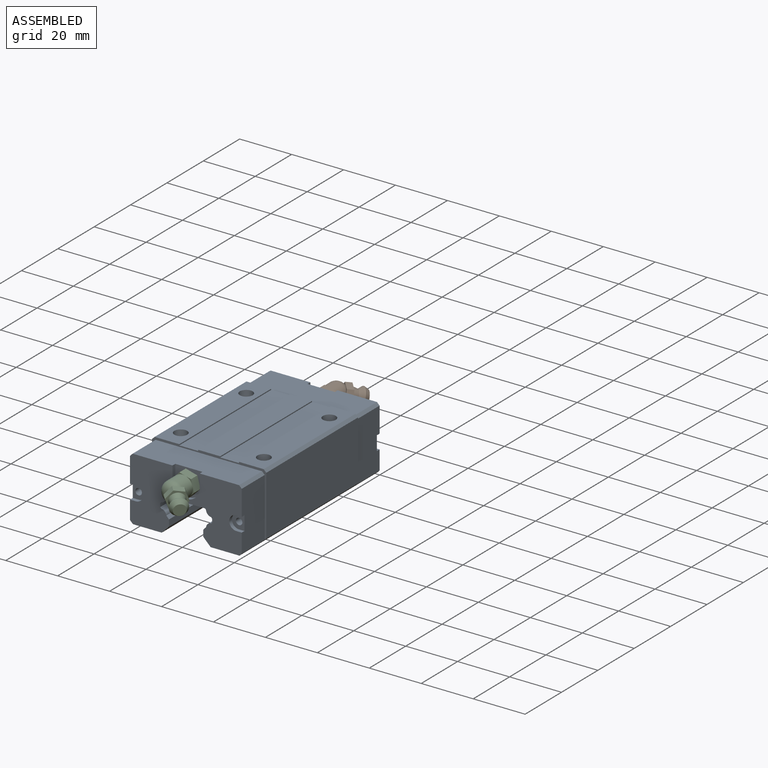
[diagram: assembled view]
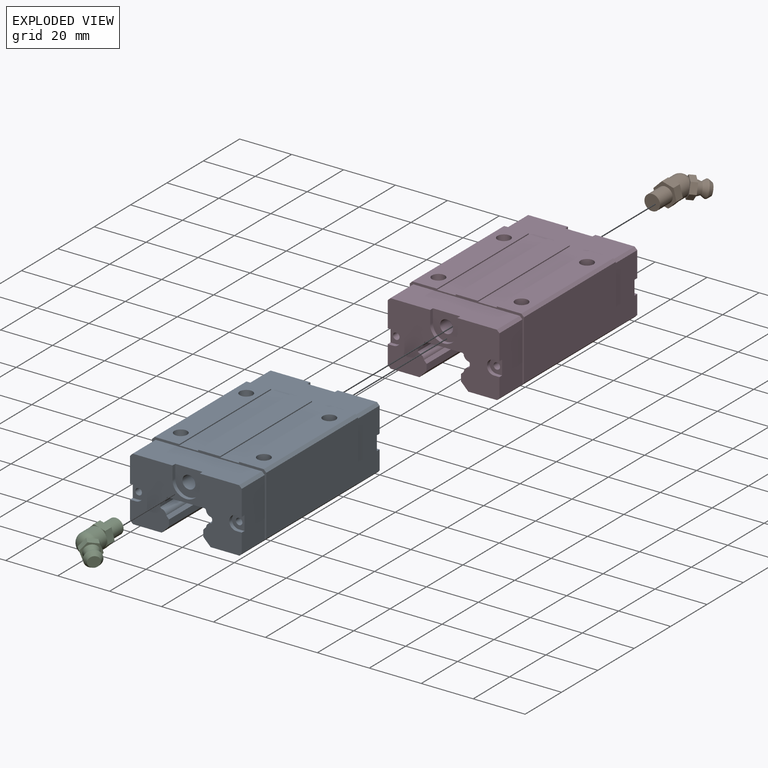
[diagram: exploded view]
GUIDED TOUR — FREECAD ASSEMBLY "HGH20CA"

This assembly has 4 components, labeled P0..P3 below (a component is one placed body or linked part; the same part can appear more than once), held together by 0 modeled joints plus 5 derived contact edges. A joint is a constraint between two components; its type names the relative motion it leaves free:
  CONTACT — a derived adjacency edge — the two components touch in the source model (clearance under 2% of the assembly's diagonal); it is measured from the geometry, not a modeled constraint.
Axis/direction vectors are unit vectors and 'through' points are millimeter coordinates, both in the assembly's world frame.

MATES
  1. CONTACT "contact_0_1": P0 <-> P1, contact direction (0.000, 1.000, 0.000) through (-1.39, 36.40, 26.47) mm (derived from contact, not a modeled constraint)
  2. CONTACT "contact_0_2": P0 <-> P2, contact direction (0.000, -1.000, 0.000) through (0.89, -36.40, 21.50) mm (derived from contact, not a modeled constraint)
  3. CONTACT "contact_0_3": P0 <-> P3, contact direction (0.000, 0.000, 1.000) through (-19.35, 37.90, 12.85) mm (derived from contact, not a modeled constraint)
  4. CONTACT "contact_1_3": P1 <-> P3, contact direction (0.000, -1.000, 0.000) through (-1.39, 36.40, 26.47) mm (derived from contact, not a modeled constraint)
  5. CONTACT "contact_2_3": P2 <-> P3, contact direction (0.000, 1.000, 0.000) through (0.89, -36.40, 21.50) mm (derived from contact, not a modeled constraint)

ASSEMBLY ORDER
  1. P0 — the base component [order heuristic]
  2. P3 — core [order heuristic]
  3. P1 [order verified]
  4. P2 — core [order heuristic]
Order-tag legend:
  [order verified] — this step's position reverses a verified removal order: the component was checked to insert without passing through the ones already placed.
  [order heuristic] — the first 3 components form the assembly's core: parts whose collision-free extraction could not be verified, listed in mate-graph order.

Of the 4 components, 4 carry a construction recipe — the FreeCAD feature program (sketches with constraints, then the solid features that consume them) that regenerates the part from scratch, quoted from this document or from the linked companion document it references; the rest are supplied as boundary geometry only. The tour below walks the components in assembly order: each is shown spotlighted twice — in the assembled view, then in the exploded view, where a leader line traces a displaced component back to its assembled socket (components that stay in place when exploded have no leader line; saturated green if recipe-attached, orange if geometry-only; every other component desaturated gray) — followed by its recipe or geometry summary and the mates that hold it.
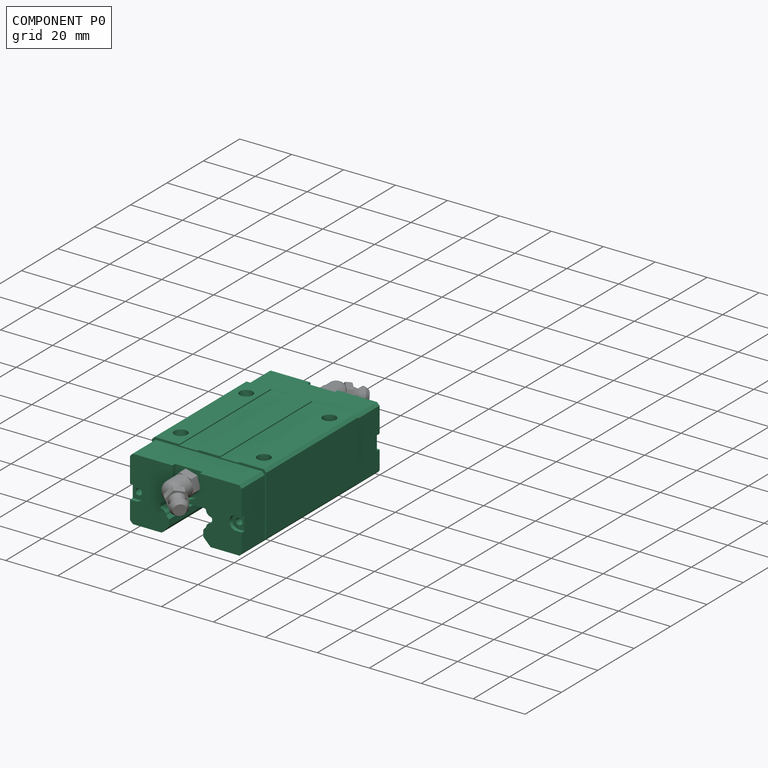
[diagram: component P0 — assembled]
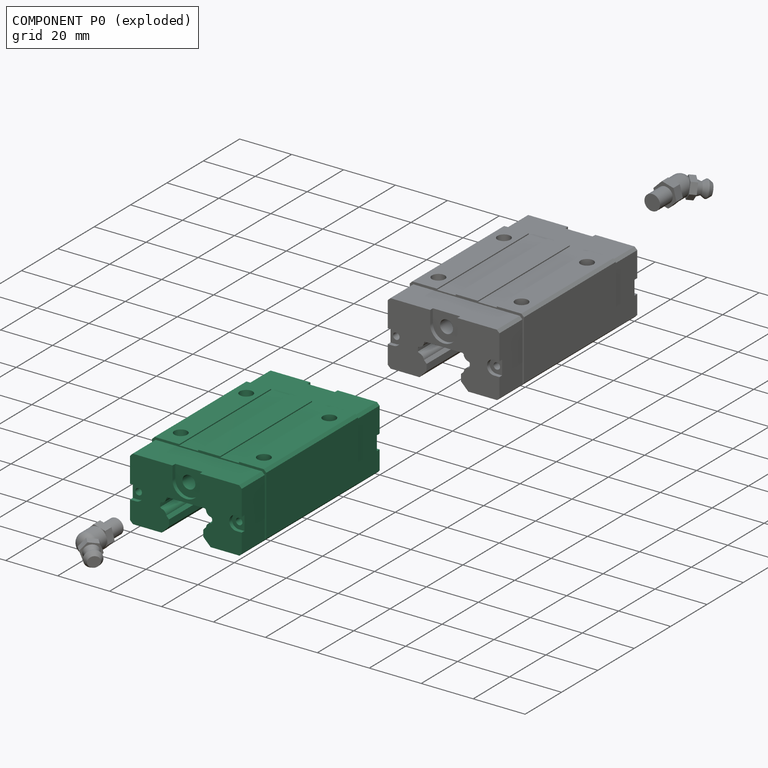
[diagram: component P0 — exploded]
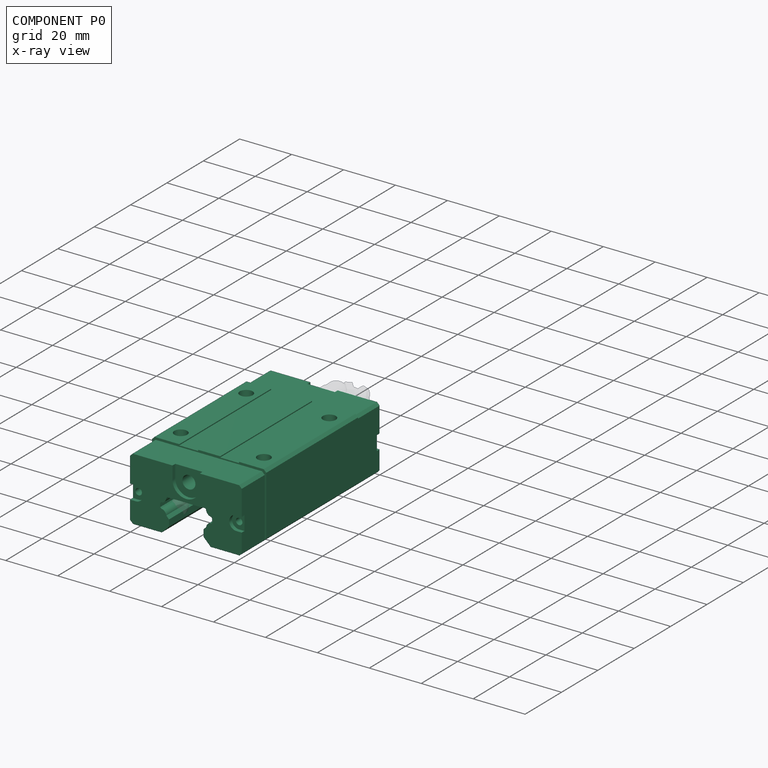
[diagram: component P0 — x-ray view]
COMPONENT P0 — recipe-attached ("Link001(HGH20CA)", modeled in this document).
Held by: resting contact with P1 (derived edge); resting contact with P2 (derived edge); resting contact with P3 (derived edge).
Construction recipe (the document's own serialized feature program — sketch geometry with constraints, then the solid features built on it; lengths are millimeters unless a unit is written):

FEATURE [Sketcher::SketchObject] Sketch
  FullyConstrained = true
  MapMode = 5
  Placement = pos=(0,0,0) rot=(1,0,0;1.5708rad)
  Support = -> [XZ_Plane]
  sketch-geometry (20):
    g0: LineSegment StartX=-21 StartY=30 StartZ=0 EndX=-11.5 EndY=30 EndZ=0
    g1: LineSegment StartX=22 StartY=29 StartZ=0 EndX=22 EndY=6.1 EndZ=0
    g2: LineSegment StartX=20.5 StartY=4.6 StartZ=0 EndX=-20.5 EndY=4.6 EndZ=0
    g3: LineSegment StartX=-21.6 StartY=5.7 StartZ=0 EndX=-21.6 EndY=22 EndZ=0
    g4: GeomPoint [constr] X=0 Y=4.6 Z=0
    g5: LineSegment StartX=-20.5 StartY=4.6 StartZ=0 EndX=-21.6 EndY=5.7 EndZ=0
    g6: LineSegment StartX=20.5 StartY=4.6 StartZ=0 EndX=22 EndY=6.1 EndZ=0
    g7: LineSegment StartX=-22 StartY=29 StartZ=0 EndX=-21 EndY=30 EndZ=0
    g8: LineSegment StartX=21 StartY=30 StartZ=0 EndX=22 EndY=29 EndZ=0
    g9: LineSegment StartX=-11.5 StartY=30 StartZ=0 EndX=-11.5 EndY=29.6 EndZ=0
    g10: LineSegment StartX=-11.5 StartY=29.6 StartZ=0 EndX=-4.25 EndY=29.6 EndZ=0
    g11: LineSegment StartX=-4.25 StartY=29.6 StartZ=0 EndX=-4.25 EndY=30 EndZ=0
    g12: LineSegment StartX=4.25 StartY=30 StartZ=0 EndX=4.25 EndY=29.6 EndZ=0
    g13: LineSegment StartX=4.25 StartY=29.6 StartZ=0 EndX=11.5 EndY=29.6 EndZ=0
    g14: LineSegment StartX=11.5 StartY=29.6 StartZ=0 EndX=11.5 EndY=30 EndZ=0
    g15: LineSegment StartX=11.5 StartY=30 StartZ=0 EndX=21 EndY=30 EndZ=0
    g16: LineSegment StartX=-4.25 StartY=30 StartZ=0 EndX=4.25 EndY=30 EndZ=0
    g17: GeomPoint [constr] X=0 Y=30 Z=0
    g18: LineSegment StartX=-21.6 StartY=22 StartZ=0 EndX=-22 EndY=22 EndZ=0
    g19: LineSegment StartX=-22 StartY=22 StartZ=0 EndX=-22 EndY=29 EndZ=0
  constraints (54):
    c: Horizontal(g0)
    c: Horizontal(g2)
    c: Vertical(g1)
    c: Vertical(g3)
    c: PointOnObject(g4,g-2)
    c: Vertical(g9)
    c: Coincident(g10,g9)
    c: Horizontal(g10)
    c: Coincident(g11,g10)
    c: Vertical(g11)
    c: Vertical(g12)
    c: Coincident(g13,g12)
    c: Horizontal(g13)
    c: Coincident(g14,g13)
    c: Vertical(g14)
    c: Coincident(g0,g7)
    c: Coincident(g15,g8)
    c: Coincident(g1,g8)
    c: Coincident(g16,g12)
    c: Coincident(g15,g14)
    c: Tangent(g0,g15)
    c: Coincident(g0,g9)
    c: Coincident(g16,g11)
    c: Tangent(g0,g16)
    c: Coincident(g1,g6)
    c: Coincident(g2,g6)
    c: Coincident(g2,g5)
    c: Coincident(g3,g5)
    c: Symmetric(g2,g2,g4)
    c: PointOnObject(g17,g-2)
    c: Symmetric(g12,g11,g17)
    c: Equal(g13,g10)
    c: Symmetric(g8,g0,g17)
    c: Horizontal(g12,g10)
    c: DistanceX(g16,g16) = 8.5
    c: DistanceX(g2,g2) = 41
    c: DistanceY(g14,g14) = 0.4
    c: DistanceX(g14,g1) = 10.5
    c: DistanceY(g1,g8) = 1
    c: DistanceY(g-1,g2) = 4.6
    c: DistanceY(g-1,g8) = 30
    c: DistanceY(g2,g1) = 1.5
    c: Horizontal(g18)
    c: Coincident(g19,g18)
    c: Vertical(g19)
    c: DistanceX(g8,g1) = 1
    c: Coincident(g3,g18)
    c: Coincident(g7,g19)
    c: Horizontal(g1,g7)
    c: DistanceX(g7,g1) = 44
    c: DistanceX(g7,g0) = 10.5
    c: DistanceY(g18,g0) = 8
    c: DistanceX(g18,g3) = 0.4
    c: Angle(g2,g5) = 2.35619
FEATURE [PartDesign::Pad] Pad
  ClaimChildren = false
  Direction = (1,1,1)
  Fit = 0
  FitJoin = 0
  InnerFit = 0
  InnerFitJoin = 0
  InnerTaperAngle = 0
  InnerTaperAngleRev = 0
  Length = 50.5
  Length2 = 100
  Linearize = true
  Midplane = true
  NewSolid = false
  Placement = pos=(0,0,0) rot=(1,0,0;1.5708rad)
  Profile = -> Sketch
  Refine = true
  Suppress = false
  Type = 0
FEATURE [Sketcher::SketchObject] Sketch001
  ExternalGeometry = -> [Pad]
  FullyConstrained = true
  MapMode = 5
  Placement = pos=(0,1.32e-14,30) rot=(0,0,1;3.14159rad)
  Support = -> [Pad]
  sketch-geometry (4):
    g0: Circle CenterX=-16 CenterY=18 CenterZ=0 NormalX=0 NormalY=0 NormalZ=1 AngleXU=0 Radius=2.5
    g1: Circle CenterX=-16 CenterY=-18 CenterZ=0 NormalX=0 NormalY=0 NormalZ=1 AngleXU=0 Radius=2.5
    g2: Circle CenterX=16 CenterY=18 CenterZ=0 NormalX=0 NormalY=0 NormalZ=1 AngleXU=0 Radius=2.5
    g3: Circle CenterX=16 CenterY=-18 CenterZ=0 NormalX=0 NormalY=0 NormalZ=1 AngleXU=0 Radius=2.5
  constraints (12):
    c: Horizontal(g3,g1)
    c: Vertical(g1,g0)
    c: Vertical(g2,g3)
    c: Horizontal(g0,g2)
    c: DistanceX(g0,g2) = 32
    c: DistanceY(g3,g2) = 36
    c: Equal(g0,g2)
    c: Equal(g2,g3)
    c: Equal(g3,g1)
    c: Symmetric(g0,g3,g-1)
    c: DistanceX(g2,g-3) = 5.6
    c: Diameter(g2) = 5
FEATURE [Sketcher::SketchObject] Sketch002
  ExternalGeometry = -> [Pad]
  FullyConstrained = true
  MapMode = 5
  Placement = pos=(0,0,0) rot=(1,0,0;1.5708rad)
  Support = -> [XZ_Plane]
  sketch-geometry (8):
    g0: LineSegment StartX=-20.6 StartY=29.1 StartZ=0 EndX=20.4 EndY=29.1 EndZ=0
    g1: LineSegment StartX=21.4 StartY=28.1 StartZ=0 EndX=21.4 EndY=5.5 EndZ=0
    g2: LineSegment StartX=20.5 StartY=4.6 StartZ=0 EndX=-20.5 EndY=4.6 EndZ=0
    g3: LineSegment StartX=-21.6 StartY=5.7 StartZ=0 EndX=-21.6 EndY=28.1 EndZ=0
    g4: LineSegment StartX=-21.6 StartY=5.7 StartZ=0 EndX=-20.5 EndY=4.6 EndZ=0
    g5: LineSegment StartX=-21.6 StartY=28.1 StartZ=0 EndX=-20.6 EndY=29.1 EndZ=0
    g6: LineSegment StartX=20.4 StartY=29.1 StartZ=0 EndX=21.4 EndY=28.1 EndZ=0
    g7: LineSegment StartX=20.5 StartY=4.6 StartZ=0 EndX=21.4 EndY=5.5 EndZ=0
  constraints (22):
    c: Horizontal(g0)
    c: Horizontal(g2)
    c: Vertical(g1)
    c: Vertical(g3)
    c: Coincident(g3,g4)
    c: Coincident(g2,g4)
    c: Coincident(g2,g-7)
    c: Coincident(g3,g-7)
    c: Coincident(g0,g5)
    c: Coincident(g3,g5)
    c: Coincident(g0,g6)
    c: Coincident(g1,g6)
    c: Horizontal(g1,g3)
    c: DistanceX(g3,g0) = 1
    c: DistanceY(g3,g0) = 1
    c: DistanceX(g0,g1) = 1
    c: DistanceY(g2,g0) = 24.5
    c: DistanceX(g3,g1) = 43
    c: Coincident(g7,g-5)
    c: PointOnObject(g7,g-5)
    c: Coincident(g1,g7)
    c: PointOnObject(g2,g7)
FEATURE [PartDesign::Pad] Pad001
  BaseFeature = -> Pad
  ClaimChildren = false
  Direction = (1,1,1)
  Fit = 0
  FitJoin = 0
  InnerFit = 0
  InnerFitJoin = 0
  InnerTaperAngle = 0
  InnerTaperAngleRev = 0
  Length = 75.8
  Length2 = 100
  Linearize = true
  Midplane = true
  NewSolid = false
  Placement = pos=(0,0,0) rot=(1,0,0;1.5708rad)
  Profile = -> Sketch002
  Refine = true
  Suppress = false
  Type = 0
FEATURE [Sketcher::SketchObject] Sketch003
  ExternalGeometry = -> [Pad001]
  FullyConstrained = true
  MapMode = 5
  Placement = pos=(0,-37.9,8.3e-15) rot=(1,0,0;1.5708rad)
  Support = -> [Pad001]
  sketch-geometry (14):
    g0: ArcOfCircle CenterX=0 CenterY=24.1 CenterZ=0 NormalX=0 NormalY=0 NormalZ=1 AngleXU=0 Radius=5.25 StartAngle=3.14159 EndAngle=6.28319
    g1: ArcOfCircle CenterX=-19.35 CenterY=15.6 CenterZ=0 NormalX=0 NormalY=0 NormalZ=1 AngleXU=0 Radius=2.75 StartAngle=4.71239 EndAngle=7.85398
    g2: ArcOfCircle CenterX=19.35 CenterY=15.6 CenterZ=0 NormalX=0 NormalY=0 NormalZ=1 AngleXU=0 Radius=2.75 StartAngle=1.5708 EndAngle=4.71239
    g3: LineSegment StartX=-5.25 StartY=24.1 StartZ=0 EndX=-5.25 EndY=29.1 EndZ=0
    g4: LineSegment StartX=5.25 StartY=24.1 StartZ=0 EndX=5.25 EndY=29.1 EndZ=0
    g5: LineSegment StartX=-5.25 StartY=29.1 StartZ=0 EndX=5.25 EndY=29.1 EndZ=0
    g6: LineSegment StartX=-19.35 StartY=18.35 StartZ=0 EndX=-21.6 EndY=18.35 EndZ=0
    g7: LineSegment StartX=-19.35 StartY=12.85 StartZ=0 EndX=-21.6 EndY=12.85 EndZ=0
    g8: LineSegment [constr] StartX=-19.35 StartY=15.6 StartZ=0 EndX=0 EndY=15.6 EndZ=0
    g9: LineSegment [constr] StartX=0 StartY=15.6 StartZ=0 EndX=19.35 EndY=15.6 EndZ=0
    g10: LineSegment StartX=19.35 StartY=18.35 StartZ=0 EndX=21.4 EndY=18.35 EndZ=0
    g11: LineSegment StartX=19.35 StartY=12.85 StartZ=0 EndX=21.4 EndY=12.85 EndZ=0
    g12: LineSegment StartX=-21.6 StartY=18.35 StartZ=0 EndX=-21.6 EndY=12.85 EndZ=0
    g13: LineSegment StartX=21.4 StartY=18.35 StartZ=0 EndX=21.4 EndY=12.85 EndZ=0
  constraints (38):
    c: PointOnObject(g0,g-2)
    c: Horizontal(g1,g2)
    c: Equal(g1,g2)
    c: Diameter(g0) = 10.5
    c: DistanceY(g0,g-3) = 5
    c: PointOnObject(g3,g-3)
    c: Vertical(g3)
    c: PointOnObject(g4,g-3)
    c: Vertical(g4)
    c: Tangent(g0,g3) = 1.5708
    c: Tangent(g0,g4) = -1.5708
    c: Coincident(g5,g3)
    c: Coincident(g5,g4)
    c: PointOnObject(g6,g-4)
    c: Horizontal(g6)
    c: PointOnObject(g7,g-4)
    c: Horizontal(g7)
    c: Diameter(g1) = 5.5
    c: Coincident(g8,g1)
    c: Horizontal(g8)
    c: Coincident(g9,g8)
    c: Coincident(g9,g2)
    c: Equal(g9,g8)
    c: PointOnObject(g10,g-5)
    c: Horizontal(g10)
    c: PointOnObject(g11,g-5)
    c: Horizontal(g11)
    c: DistanceY(g2,g-3) = 13.5
    c: DistanceX(g-4,g1) = 2.25
    c: PointOnObject(g8,g-2)
    c: Tangent(g1,g7) = 1.5708
    c: Tangent(g1,g6) = -1.5708
    c: Tangent(g2,g10) = 1.5708
    c: Tangent(g2,g11) = -1.5708
    c: Coincident(g12,g6)
    c: Coincident(g12,g7)
    c: Coincident(g13,g10)
    c: Coincident(g13,g11)
FEATURE [PartDesign::Pocket] Pocket
  BaseFeature = -> Pad001
  ClaimChildren = false
  Fit = 0
  FitJoin = 0
  InnerFit = 0
  InnerFitJoin = 0
  InnerTaperAngle = 0
  InnerTaperAngleRev = 0
  Length = 1.5
  Length2 = 100
  Linearize = true
  NewSolid = false
  Placement = pos=(0,0,0) rot=(1,0,0;1.5708rad)
  Profile = -> Sketch003
  Refine = true
  Suppress = false
  Type = 0
FEATURE [Sketcher::SketchObject] Sketch004
  ExternalGeometry = -> [Pocket]
  FullyConstrained = true
  MapMode = 5
  Placement = pos=(0,-36.4,2.95e-14) rot=(1,0,0;1.5708rad)
  Support = -> [Pocket]
  sketch-geometry (3):
    g0: Circle CenterX=-19.35 CenterY=15.6 CenterZ=0 NormalX=0 NormalY=0 NormalZ=1 AngleXU=0 Radius=1.25
    g1: Circle CenterX=19.35 CenterY=15.6 CenterZ=0 NormalX=0 NormalY=0 NormalZ=1 AngleXU=0 Radius=1.25
    g2: Circle CenterX=0 CenterY=24.1 CenterZ=0 NormalX=0 NormalY=0 NormalZ=1 AngleXU=0 Radius=2.5
  constraints (6):
    c: Coincident(g0,g-3)
    c: Coincident(g1,g-5)
    c: Coincident(g2,g-4)
    c: Diameter(g2) = 5
    c: Diameter(g1) = 2.5
    c: Equal(g1,g0)
FEATURE [PartDesign::Pocket] Pocket001
  BaseFeature = -> Pocket
  ClaimChildren = false
  Fit = 0
  FitJoin = 0
  InnerFit = 0
  InnerFitJoin = 0
  InnerTaperAngle = 0
  InnerTaperAngleRev = 0
  Length = 8
  Length2 = 100
  Linearize = true
  NewSolid = false
  Placement = pos=(0,0,0) rot=(1,0,0;1.5708rad)
  Profile = -> Sketch004
  Refine = true
  Suppress = false
  Type = 0
FEATURE [PartDesign::Mirrored] Mirrored
  BaseFeature = -> Pocket001
  CopyShape = false
  MirrorPlane = -> XZ_Plane
  NewSolid = false
  OriginalSubs = -> [Pocket001,Pocket]
  Originals = -> [Pocket001,Pocket]
  ParallelTransform = true
  Placement = pos=(0,0,0) rot=(1,0,0;1.5708rad)
  Refine = true
  SubTransform = true
  Suppress = false
  _Version = 1
FEATURE [Sketcher::SketchObject] Sketch010
  FullyConstrained = true
  MapMode = 5
  Placement = pos=(0,0,0) rot=(1,0,0;1.5708rad)
  Support = -> [XZ_Plane]
  sketch-geometry (29):
    g0: LineSegment StartX=-9 StartY=0 StartZ=0 EndX=-10 EndY=1 EndZ=0
    g1: LineSegment StartX=-10 StartY=1 StartZ=0 EndX=-10 EndY=4 EndZ=0
    g2: LineSegment StartX=-10 StartY=4 StartZ=0 EndX=-6.6 EndY=7.45 EndZ=0
    g3: LineSegment StartX=-6.6 StartY=7.45 StartZ=0 EndX=-6.6 EndY=9.95 EndZ=0
    g4: LineSegment StartX=-6.6 StartY=9.95 StartZ=0 EndX=-7.65996 EndY=11.05 EndZ=0
    g5: ArcOfCircle CenterX=-9.8 CenterY=10.8 CenterZ=0 NormalX=0 NormalY=0 NormalZ=1 AngleXU=0 Radius=2.15459 StartAngle=0.116293 EndAngle=1.47784
    g6: LineSegment StartX=-9.6 StartY=12.9453 StartZ=0 EndX=-10 EndY=13.3453 EndZ=0
    g7: LineSegment StartX=-10 StartY=13.3453 StartZ=0 EndX=-10 EndY=14.6953 EndZ=0
    g8: LineSegment StartX=-10 StartY=14.6953 StartZ=0 EndX=-9.6 EndY=15.0953 EndZ=0
    g9: ArcOfCircle CenterX=-9.8 CenterY=17.2406 CenterZ=0 NormalX=0 NormalY=0 NormalZ=1 AngleXU=0 Radius=2.15459 StartAngle=4.80535 EndAngle=6.21789
    g10: LineSegment StartX=-7.65 StartY=17.1 StartZ=0 EndX=-7.25 EndY=17.5 EndZ=0
    g11: LineSegment StartX=-7.25 StartY=17.5 StartZ=0 EndX=0 EndY=17.5 EndZ=0
    g12: LineSegment StartX=0 StartY=17.5 StartZ=0 EndX=7.25 EndY=17.5 EndZ=0
    g13: LineSegment StartX=7.25 StartY=17.5 StartZ=0 EndX=7.65 EndY=17.1 EndZ=0
    g14: ArcOfCircle CenterX=9.8 CenterY=17.2406 CenterZ=0 NormalX=0 NormalY=0 NormalZ=1 AngleXU=0 Radius=2.15459 StartAngle=3.20688 EndAngle=4.61943
    g15: LineSegment StartX=9.6 StartY=15.0953 StartZ=0 EndX=10 EndY=14.6953 EndZ=0
    g16: LineSegment StartX=10 StartY=14.6953 StartZ=0 EndX=10 EndY=13.3453 EndZ=0
    g17: LineSegment StartX=10 StartY=13.3453 StartZ=0 EndX=9.6 EndY=12.9453 EndZ=0
    g18: ArcOfCircle CenterX=9.8 CenterY=10.8 CenterZ=0 NormalX=0 NormalY=0 NormalZ=1 AngleXU=0 Radius=2.15459 StartAngle=1.66376 EndAngle=3.0253
    g19: LineSegment StartX=7.65996 StartY=11.05 StartZ=0 EndX=6.6 EndY=9.95 EndZ=0
    g20: LineSegment StartX=6.6 StartY=9.95 StartZ=0 EndX=6.6 EndY=7.45 EndZ=0
    g21: LineSegment StartX=6.6 StartY=7.45 StartZ=0 EndX=10 EndY=4 EndZ=0
    g22: LineSegment StartX=10 StartY=4 StartZ=0 EndX=10 EndY=1 EndZ=0
    g23: LineSegment StartX=10 StartY=1 StartZ=0 EndX=9 EndY=0 EndZ=0
    g24: LineSegment StartX=-4 StartY=0 StartZ=0 EndX=-4 EndY=0.4 EndZ=0
    g25: LineSegment StartX=-4 StartY=0.4 StartZ=0 EndX=4 EndY=0.4 EndZ=0
    g26: LineSegment StartX=4 StartY=0.4 StartZ=0 EndX=4 EndY=0 EndZ=0
    g27: LineSegment StartX=-9 StartY=0 StartZ=0 EndX=-4 EndY=0 EndZ=0
    g28: LineSegment StartX=4 StartY=0 StartZ=0 EndX=9 EndY=0 EndZ=0
  constraints (89):
    c: Coincident(g0,g1)
    c: Vertical(g1)
    c: Coincident(g1,g2)
    c: Coincident(g2,g3)
    c: Vertical(g3)
    c: Coincident(g3,g4)
    c: Coincident(g5,g4)
    c: Coincident(g6,g5)
    c: Coincident(g6,g7)
    c: Vertical(g7)
    c: Coincident(g7,g8)
    c: Coincident(g9,g8)
    c: Coincident(g9,g10)
    c: Coincident(g10,g11)
    c: PointOnObject(g11,g-2)
    c: Horizontal(g11)
    c: Coincident(g11,g12)
    c: Horizontal(g12)
    c: Coincident(g12,g13)
    c: Coincident(g14,g13)
    c: Coincident(g14,g15)
    c: Coincident(g15,g16)
    c: Coincident(g16,g17)
    c: Coincident(g18,g17)
    c: Coincident(g18,g19)
    c: Coincident(g19,g20)
    c: Vertical(g20)
    c: Coincident(g20,g21)
    c: Coincident(g21,g22)
    c: Vertical(g22)
    c: Coincident(g22,g23)
    c: PointOnObject(g23,g-1)
    c: Equal(g0,g23)
    c: Equal(g22,g1)
    c: Equal(g2,g21)
    c: Equal(g20,g3)
    c: Equal(g4,g19)
    c: Equal(g5,g18)
    c: Equal(g18,g14)
    c: Equal(g14,g9)
    c: Equal(g15,g17)
    c: Vertical(g16)
    c: Equal(g16,g7)
    c: Equal(g10,g13)
    c: Equal(g12,g11)
    c: DistanceX(g10,g12) = 14.5
    c: Horizontal(g22,g0)
    c: DistanceX(g0,g22) = 20
    c: Horizontal(g2,g20)
    c: DistanceX(g0,g23) = 18
    c: DistanceY(g23,g22) = 1
    c: DistanceY(g22,g22) = 3
    c: DistanceX(g2,g20) = 13.2
    c: DistanceY(g21,g20) = 3.45
    c: DistanceY(g20,g20) = 2.5
    c: Horizontal(g18,g5)
    c: Horizontal(g18,g4)
    c: Horizontal(g9,g13)
    c: Horizontal(g9,g14)
    c: Vertical(g9,g5)
    c: DistanceX(g9,g13) = 15.3
    c: DistanceY(g13,g12) = 0.4
    c: Vertical(g15,g21)
    c: Vertical(g7,g1)
    c: Equal(g13,g15)
    c: Equal(g17,g6)
    c: Equal(g6,g8)
    c: DistanceY(g19,g18) = 1.1
    c: DistanceY(g23,g18) = 10.8
    c: DistanceX(g5,g17) = 19.2
    c: DistanceY(g23,g12) = 17.5
    c: DistanceY(g17,g16) = 0.4
    c: DistanceY(g15,g14) = 0.4
    c: DistanceY(g7,g7) = 1.35
    c: DistanceX(g-1,g18) = 9.8
    c: Coincident(g24,g25)
    c: Horizontal(g25)
    c: Coincident(g25,g26)
    c: Vertical(g26)
    c: Vertical(g24)
    c: Symmetric(g26,g24,g-1)
    c: Coincident(g27,g0)
    c: Coincident(g27,g24)
    c: Horizontal(g27)
    c: Coincident(g28,g26)
    c: Coincident(g28,g23)
    c: DistanceX(g25,g25) = 8
    c: DistanceY(g26,g26) = 0.4
    c: Symmetric(g23,g0,g-1)
FEATURE [PartDesign::Pocket] Pocket002
  BaseFeature = -> Mirrored
  ClaimChildren = false
  Fit = 0
  FitJoin = 0
  InnerFit = 0
  InnerFitJoin = 0
  InnerTaperAngle = 0
  InnerTaperAngleRev = 0
  Length = 5
  Length2 = 100
  Linearize = true
  Midplane = true
  NewSolid = false
  Placement = pos=(0,0,0) rot=(1,0,0;1.5708rad)
  Profile = -> Sketch010
  Refine = true
  Suppress = false
  Type = 1
FEATURE [PartDesign::Pocket] Pocket003
  BaseFeature = -> Pocket002
  ClaimChildren = false
  Fit = 0
  FitJoin = 0
  InnerFit = 0
  InnerFitJoin = 0
  InnerTaperAngle = 0
  InnerTaperAngleRev = 0
  Length = 9
  Length2 = 100
  Linearize = true
  NewSolid = false
  Placement = pos=(0,0,0) rot=(1,0,0;1.5708rad)
  Profile = -> Sketch001
  Refine = true
  Suppress = false
  Type = 0
FEATURE [PartDesign::Body] Body  label="HGH20CA"
  AutoGroupSolids = false
  ExportMode = 0
  Group = -> [Sketch,Pad,Sketch001,Sketch002,Pad001,Sketch003,Pocket,Sketch004,Pocket001,Mirrored,Sketch010,Pocket002,Pocket003]
  Origin = -> Origin
  Tip = -> Pocket003
  _ExportChildren = -> [Pad,Pad001,Pocket,Pocket001,Mirrored,Pocket002,Pocket003]
  _GroupVersion = 1
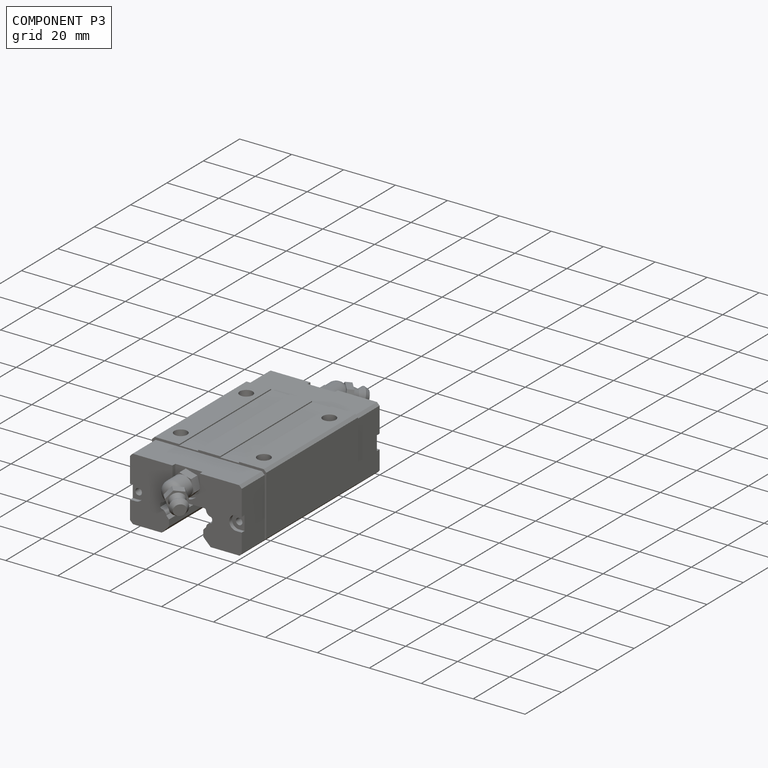
[diagram: component P3 — assembled]
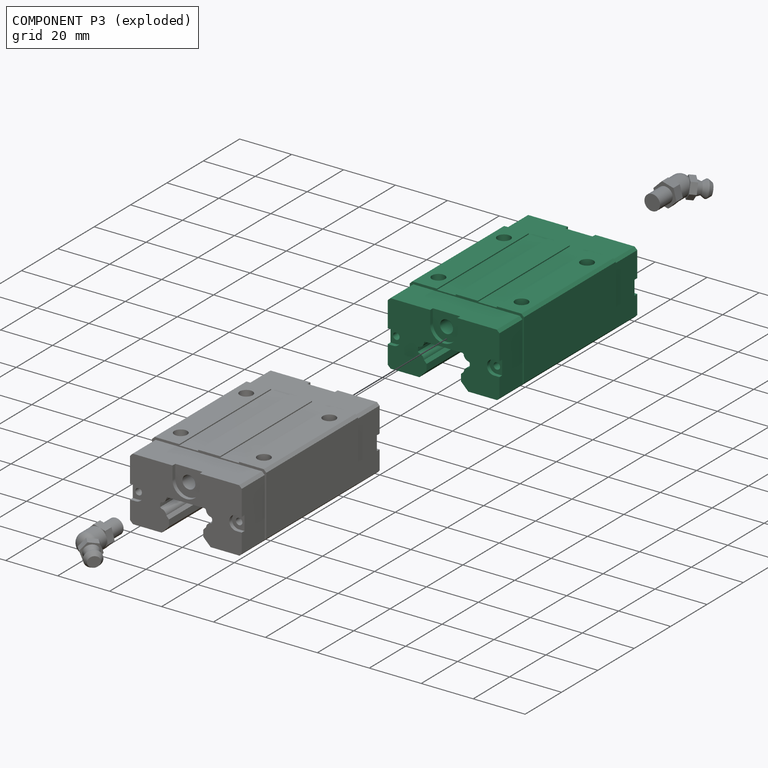
[diagram: component P3 — exploded]
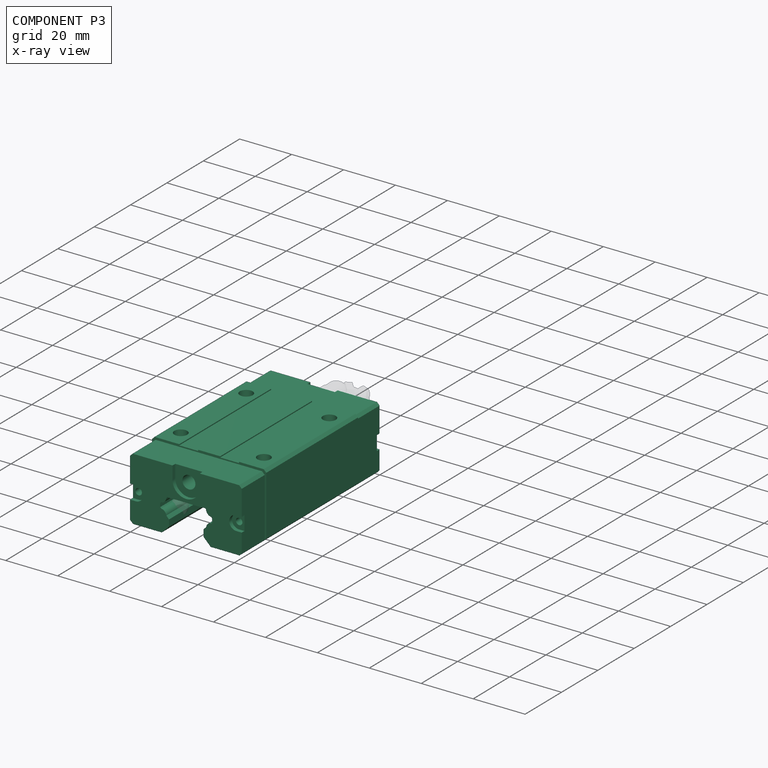
[diagram: component P3 — x-ray view]
COMPONENT P3 — same part as P0; its construction recipe is shown at P0.
Held by: resting contact with P0 (derived edge); resting contact with P1 (derived edge); resting contact with P2 (derived edge).
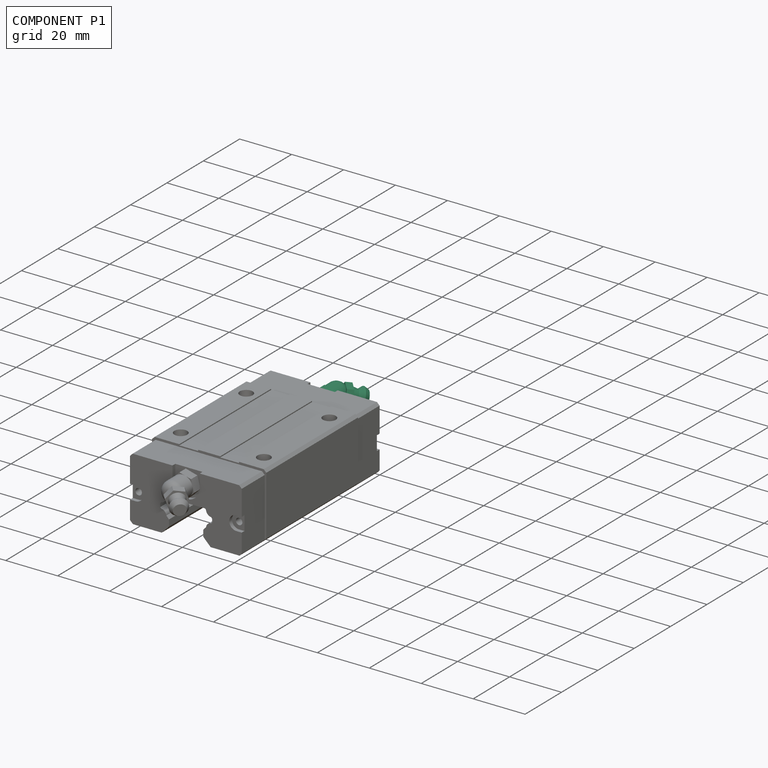
[diagram: component P1 — assembled]
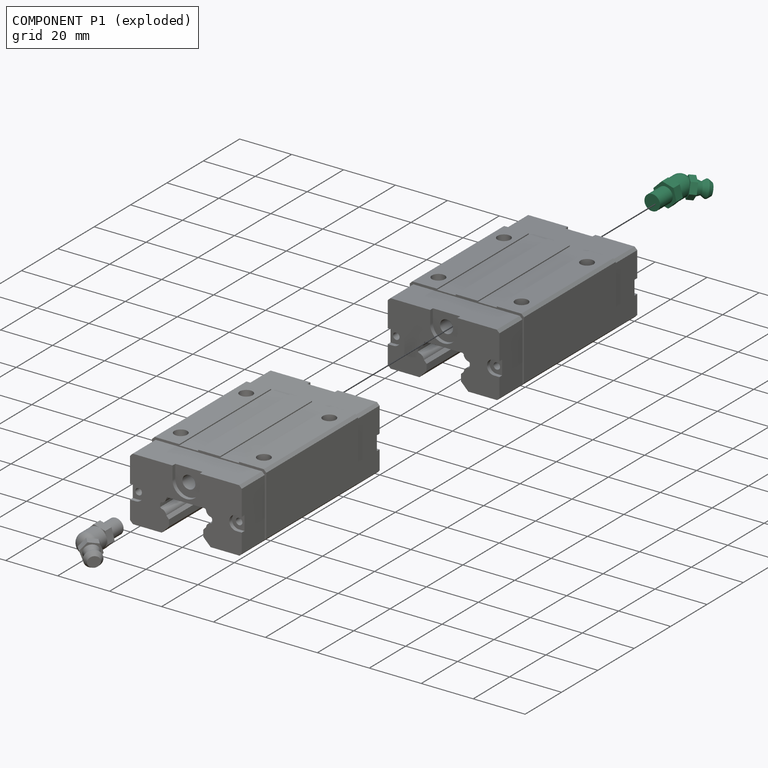
[diagram: component P1 — exploded]
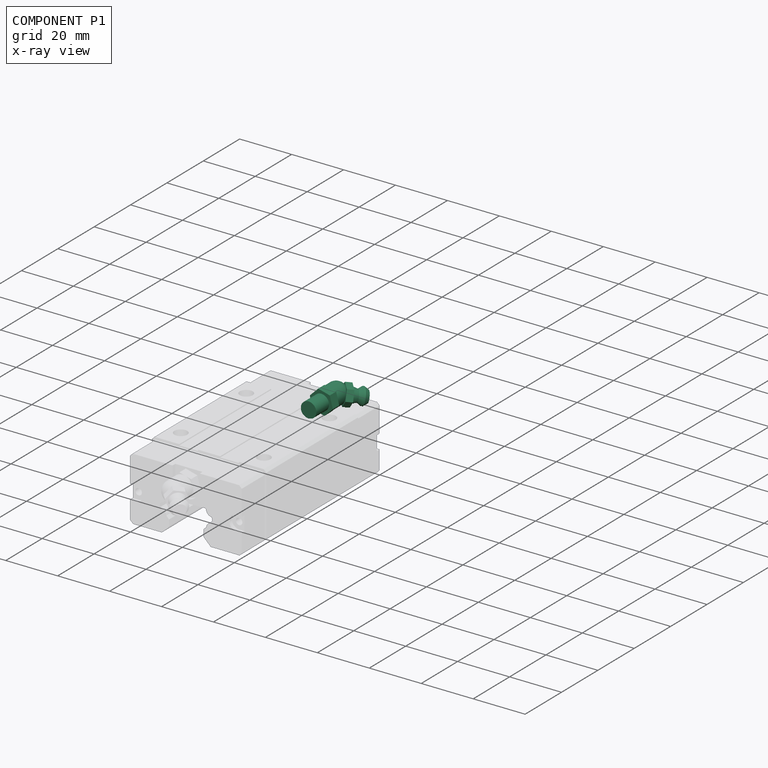
[diagram: component P1 — x-ray view]
COMPONENT P1 — recipe-attached ("Link002(Greaser)", modeled in this document).
Held by: resting contact with P0 (derived edge); resting contact with P3 (derived edge).
Construction recipe (the document's own serialized feature program — sketch geometry with constraints, then the solid features built on it; lengths are millimeters unless a unit is written):

FEATURE [Sketcher::SketchObject] Sketch005
  FullyConstrained = true
  MapMode = 5
  Placement = pos=(0,0,0) rot=(1,0,0;1.5708rad)
  Support = -> [XZ_Plane001]
  sketch-geometry (1):
    g0: Circle CenterX=0 CenterY=0 CenterZ=0 NormalX=0 NormalY=0 NormalZ=1 AngleXU=0 Radius=3
  constraints (2):
    c: Coincident(g0,g-1)
    c: Radius(g0) = 3
FEATURE [PartDesign::Pad] Pad002
  ClaimChildren = false
  Direction = (1,1,1)
  Fit = 0
  FitJoin = 0
  InnerFit = 0
  InnerFitJoin = 0
  InnerTaperAngle = 0
  InnerTaperAngleRev = 0
  Length = 7
  Length2 = 100
  Linearize = true
  NewSolid = false
  Placement = pos=(0,0,0) rot=(1,0,0;1.5708rad)
  Profile = -> Sketch005
  Refine = true
  Suppress = false
  Type = 0
FEATURE [Sketcher::SketchObject] Sketch006
  FullyConstrained = true
  MapMode = 5
  Placement = pos=(0,0,0) rot=(-1,0,0;1.5708rad)
  Support = -> [Pad002]
  sketch-geometry (7):
    g0: LineSegment StartX=4 StartY=-2.3094 StartZ=0 EndX=4 EndY=2.3094 EndZ=0
    g1: LineSegment StartX=4 StartY=2.3094 StartZ=0 EndX=-4e-16 EndY=4.6188 EndZ=0
    g2: LineSegment StartX=-4e-16 StartY=4.6188 StartZ=0 EndX=-4 EndY=2.3094 EndZ=0
    g3: LineSegment StartX=-4 StartY=2.3094 StartZ=0 EndX=-4 EndY=-2.3094 EndZ=0
    g4: LineSegment StartX=-4 StartY=-2.3094 StartZ=0 EndX=4e-16 EndY=-4.6188 EndZ=0
    g5: LineSegment StartX=4e-16 StartY=-4.6188 StartZ=0 EndX=4 EndY=-2.3094 EndZ=0
    g6: Circle [constr] CenterX=0 CenterY=0 CenterZ=0 NormalX=0 NormalY=0 NormalZ=1 AngleXU=0 Radius=4.6188
  constraints (16):
    c: Coincident(g0,g1)
    c: Coincident(g1,g2)
    c: Coincident(g2,g3)
    c: Coincident(g3,g4)
    c: Coincident(g4,g5)
    c: Coincident(g5,g0)
    c: Equal(g0, g1-g5) x5
    c: PointOnObject(g0,g6)
    c: PointOnObject(g1,g6)
    c: PointOnObject(g2,g6)
    c: PointOnObject(g3,g6)
    c: PointOnObject(g4,g6)
    c: PointOnObject(g5,g6)
    c: Coincident(g6,g-1)
    c: Vertical(g0)
    c: DistanceX(g2,g0) = 8
FEATURE [PartDesign::Pad] Pad003
  BaseFeature = -> Pad002
  ClaimChildren = false
  Direction = (1,1,1)
  Fit = 0
  FitJoin = 0
  InnerFit = 0
  InnerFitJoin = 0
  InnerTaperAngle = 0
  InnerTaperAngleRev = 0
  Length = 3.5
  Length2 = 100
  Linearize = true
  NewSolid = false
  Placement = pos=(0,0,0) rot=(1,0,0;1.5708rad)
  Profile = -> Sketch006
  Refine = true
  Suppress = false
  Type = 0
FEATURE [Sketcher::SketchObject] Sketch007
  FullyConstrained = true
  MapMode = 5
  Placement = pos=(0,3.5,8e-16) rot=(-1,0,0;1.5708rad)
  Support = -> [Pad003]
  sketch-geometry (1):
    g0: Circle CenterX=0 CenterY=0 CenterZ=0 NormalX=0 NormalY=0 NormalZ=1 AngleXU=0 Radius=4
  constraints (2):
    c: Coincident(g0,g-1)
    c: Radius(g0) = 4
FEATURE [PartDesign::Pad] Pad004
  BaseFeature = -> Pad003
  ClaimChildren = false
  Direction = (1,1,1)
  Fit = 0
  FitJoin = 0
  InnerFit = 0
  InnerFitJoin = 0
  InnerTaperAngle = 0
  InnerTaperAngleRev = 0
  Length = 8
  Length2 = 100
  Linearize = true
  NewSolid = false
  Placement = pos=(0,0,0) rot=(1,0,0;1.5708rad)
  Profile = -> Sketch007
  Refine = true
  Suppress = false
  Type = 0
FEATURE [PartDesign::Fillet] Fillet
  Base = -> Pad004 [Edge35]
  BaseFeature = -> Pad004
  NewSolid = false
  Placement = pos=(0,0,0) rot=(1,0,0;1.5708rad)
  Radius = 3
  Refine = true
  SupportTransform = false
  Suppress = false
FEATURE [PartDesign::Plane] DatumPlane
  AttachmentOffset = pos=(0,0,0) rot=(1,0,0;0.785398rad)
  Length = 50
  MapMode = 5
  MinimumLength = 10
  MinimumWidth = 10
  Placement = pos=(0,11.5,3e-15) rot=(-1,0,0;0.785398rad)
  ResizeMode = 0
  Support = -> [Fillet]
  Width = 70.7107
FEATURE [Sketcher::SketchObject] Sketch008
  FullyConstrained = true
  MapMode = 5
  Placement = pos=(0,11.5,3.6e-15) rot=(-1,0,0;0.785398rad)
  Support = -> [DatumPlane]
  sketch-geometry (7):
    g0: LineSegment StartX=3.5 StartY=-4.62073 StartZ=0 EndX=3.5 EndY=-0.579274 EndZ=0
    g1: LineSegment StartX=3.5 StartY=-0.579274 StartZ=0 EndX=8.273e-13 EndY=1.44145 EndZ=0
    g2: LineSegment StartX=8.273e-13 StartY=1.44145 StartZ=0 EndX=-3.5 EndY=-0.579274 EndZ=0
    g3: LineSegment StartX=-3.5 StartY=-0.579274 StartZ=0 EndX=-3.5 EndY=-4.62073 EndZ=0
    g4: LineSegment StartX=-3.5 StartY=-4.62073 StartZ=0 EndX=-8.273e-13 EndY=-6.64145 EndZ=0
    g5: LineSegment StartX=-8.273e-13 StartY=-6.64145 StartZ=0 EndX=3.5 EndY=-4.62073 EndZ=0
    g6: Circle [constr] CenterX=0 CenterY=-2.6 CenterZ=0 NormalX=0 NormalY=0 NormalZ=1 AngleXU=0 Radius=4.04145
  constraints (17):
    c: Coincident(g0,g1)
    c: Coincident(g1,g2)
    c: Coincident(g2,g3)
    c: Coincident(g3,g4)
    c: Coincident(g4,g5)
    c: Coincident(g5,g0)
    c: Equal(g0, g1-g5) x5
    c: PointOnObject(g0,g6)
    c: PointOnObject(g1,g6)
    c: PointOnObject(g2,g6)
    c: PointOnObject(g3,g6)
    c: PointOnObject(g4,g6)
    c: PointOnObject(g5,g6)
    c: PointOnObject(g6,g-2)
    c: Vertical(g0)
    c: DistanceX(g2,g0) = 7
    c: DistanceY(g6,g-1) = 2.6
FEATURE [PartDesign::Pad] Pad005
  BaseFeature = -> Fillet
  ClaimChildren = false
  Direction = (1,1,1)
  Fit = 0
  FitJoin = 0
  InnerFit = 0
  InnerFitJoin = 0
  InnerTaperAngle = 0
  InnerTaperAngleRev = 0
  Length = 2.5
  Length2 = 100
  Linearize = true
  NewSolid = false
  Placement = pos=(0,0,0) rot=(1,0,0;1.5708rad)
  Profile = -> Sketch008
  Refine = true
  Suppress = false
  Type = 0
FEATURE [PartDesign::Plane] DatumPlane001
  AttachmentOffset = pos=(0,0,0) rot=(0,1,0;1.5708rad)
  Length = 70.7107
  MapMode = 5
  MinimumLength = 10
  MinimumWidth = 10
  Placement = pos=(2e-16,7.51777,7.51777) rot=(-0.357407,0.862856,-0.357407;1.71777rad)
  ResizeMode = 0
  Support = -> [Pad005]
  Width = 70.7107
FEATURE [Sketcher::SketchObject] Sketch009
  ExternalGeometry = -> [Pad005]
  FullyConstrained = true
  MapMode = 5
  Placement = pos=(2e-16,7.51777,7.51777) rot=(-0.357407,0.862856,-0.357407;1.71777rad)
  Support = -> [DatumPlane001]
  sketch-geometry (7):
    g0: LineSegment StartX=0 StartY=8.43173 StartZ=0 EndX=-2 EndY=7.78173 EndZ=0
    g1: LineSegment StartX=-4 StartY=8.78173 StartZ=0 EndX=-5.5 EndY=7.78173 EndZ=0
    g2: LineSegment StartX=-5.5 StartY=7.78173 StartZ=0 EndX=-5.5 EndY=5.53173 EndZ=0
    g3: LineSegment StartX=-5.5 StartY=5.53173 StartZ=0 EndX=1.8e-15 EndY=5.53173 EndZ=0
    g4: LineSegment StartX=1.8e-15 StartY=5.53173 StartZ=0 EndX=0 EndY=8.43173 EndZ=0
    g5: LineSegment StartX=-4 StartY=8.78173 StartZ=0 EndX=-3.5 EndY=8.78173 EndZ=0
    g6: LineSegment StartX=-3.5 StartY=8.78173 StartZ=0 EndX=-2 EndY=7.78173 EndZ=0
  constraints (20):
    c: PointOnObject(g0,g-2)
    c: Vertical(g2)
    c: Coincident(g3,g2)
    c: Horizontal(g3)
    c: Coincident(g4,g3)
    c: Coincident(g4,g0)
    c: Symmetric(g-3,g-4,g3)
    c: DistanceY(g4,g4) = 2.9
    c: DistanceX(g3,g3) = 5.5
    c: Coincident(g2,g1)
    c: DistanceX(g1,g1) = 1.5
    c: Coincident(g5,g1)
    c: Coincident(g6,g5)
    c: Coincident(g6,g0)
    c: Horizontal(g5)
    c: DistanceX(g5,g0) = 1.5
    c: Horizontal(g1,g0)
    c: DistanceX(g1,g0) = 3.5
    c: DistanceY(g2,g2) = 2.25
    c: DistanceY(g2,g1) = 3.25
FEATURE [PartDesign::Line] DatumLine
  AttacherType = Attacher::AttachEngineLine
  Length = 70.7107
  MapMode = 29
  MinimumLength = 10
  Placement = pos=(2e-16,11.4293,3.60624) rot=(1,0,0;2.35619rad)
  ResizeMode = 0
  Support = -> [Sketch009]
FEATURE [PartDesign::Revolution] Revolution
  Angle = 360
  Axis = (0,-0.707107,-0.707107)
  Base = (2e-16,11.4293,3.60624)
  BaseFeature = -> Pad005
  ClaimChildren = false
  Fit = 0
  FitJoin = 0
  InnerFit = 0
  InnerFitJoin = 0
  NewSolid = false
  Placement = pos=(0,0,0) rot=(1,0,0;1.5708rad)
  Profile = -> Sketch009
  ReferenceAxis = -> DatumLine
  Refine = true
  Suppress = false
FEATURE [PartDesign::Body] Body001  label="Greaser"
  AutoGroupSolids = false
  ExportMode = 0
  Group = -> [Sketch005,Pad002,Sketch006,Pad003,Sketch007,Pad004,Fillet,DatumPlane,Sketch008,Pad005,DatumPlane001,Sketch009,DatumLine,Revolution]
  Origin = -> Origin001
  Placement = pos=(0.291005,-51,25.9599) rot=(-0.793353,0,0.608761;3.14159rad)
  Tip = -> Revolution
  _ExportChildren = -> [Pad002,Pad003,Pad004,Fillet,DatumPlane,Pad005,DatumPlane001,DatumLine,Revolution]
  _GroupVersion = 1
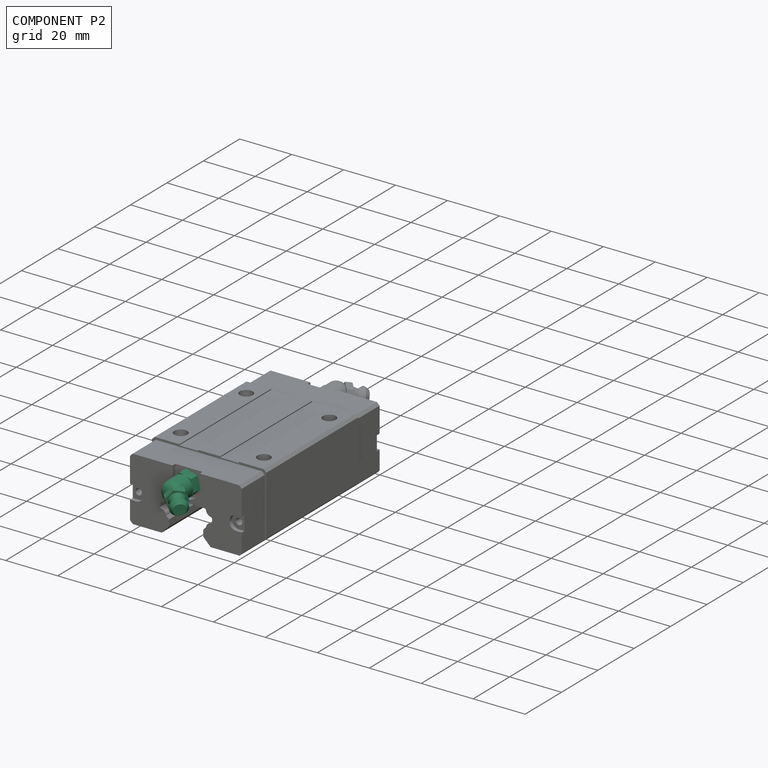
[diagram: component P2 — assembled]
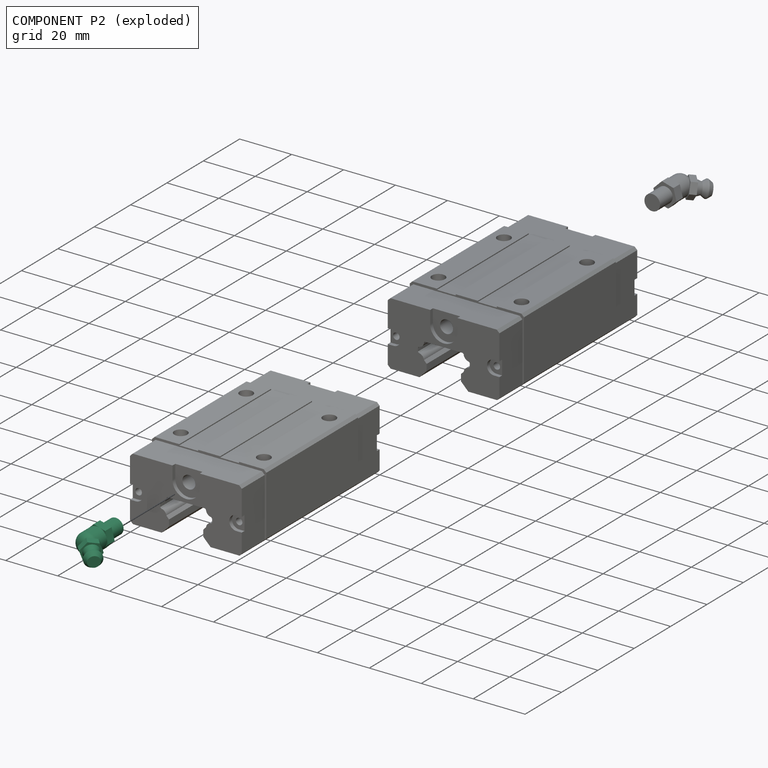
[diagram: component P2 — exploded]
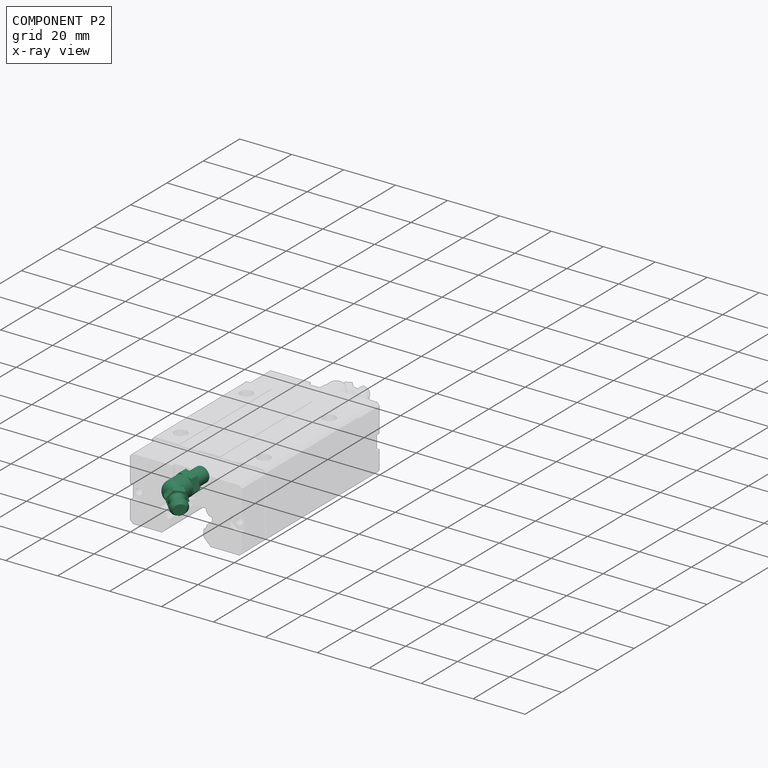
[diagram: component P2 — x-ray view]
COMPONENT P2 — same part as P1; its construction recipe is shown at P1.
Held by: resting contact with P0 (derived edge); resting contact with P3 (derived edge).
PROVENANCE & LICENSES
Assembly and component geometry: a FreeCAD (.FCStd) document from a public repository crawl; components, placements and joints were extracted with FreeCAD and each solid tessellated.
Construction recipes: the document's own serialized feature recipes (and, for linked parts, the recipes of companion documents from the same project).
License: mit.
Joints: native FreeCAD joints and A2plus constraints are mapped to standard mate types; edges marked 'derived from contact' connect touching components and are measured from the geometry, not modeled.
Verification: 4 of this assembly's 4 components carry a construction recipe (4 from this document itself); the rest are geometry-only. Every component's tessellation passed the extraction mesh gates (mesh-volume checksum against the B-rep where available, bounding-box inflation <= 2%).
Renders: orthographic iso camera (az 35 / el 25); the floor grid conveys scale (grid pitch printed in each image; no ruler). In the exploded view each component is displaced by its stored offset vector: the offsets alone carry the explosion direction (mate normal/axis signs are not orientation cues and do not encode it), and separation distances are assigned per mate-chain, not proportionally to assembly-order depth.
